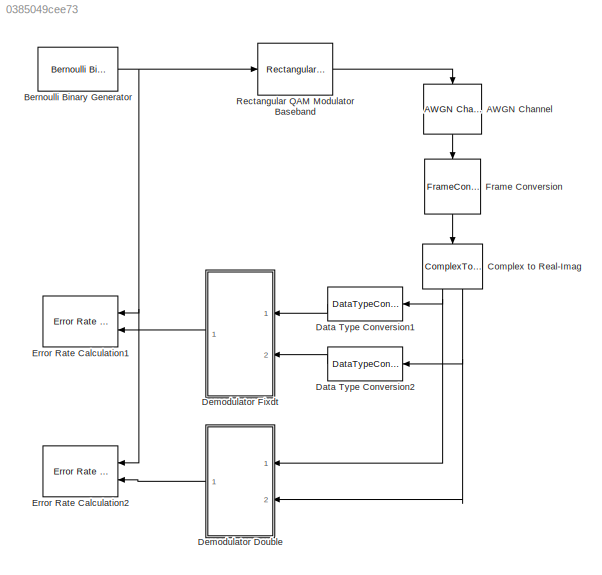
MODEL slx_0385049cee73
KIND model
CONFIG AbsTol = auto
CONFIG FixedStep = auto
CONFIG MaxStep = auto
CONFIG MinStep = auto
CONFIG RelTol = 1e-3
CONFIG SampleTimeConstraint = Unconstrained
CONFIG Solver = ode45
CONFIG SolverMode = Auto
CONFIG SolverName = ode45
CONFIG StartTime = 0.0
CONFIG StopTime = 10
BLOCK [Reference] AWGN Channel  REF=commchan3/AWGN
Channel
  EbNodB = 10
  EsNodB = 10
  InputProcessing = Columns as channels (frame based)
  Ports = [1, 1]
  Ps = 1
  SNRdB = 7
  SourceBlock = commchan3/AWGN\nChannel
  SourceType = AWGN Channel
  Tsym = 1
  UserDataPersistent = on
  bitsPerSym = 1
  noiseMode = Signal to noise ratio  (SNR)
  seed = round(200 * sum(clock))
  variance = 1
BLOCK [Reference] Bernoulli Binary Generator  REF=commrandsrc2/Bernoulli Binary
Generator
  P = 0.5
  Ports = [0, 1]
  SourceBlock = commrandsrc2/Bernoulli Binary\nGenerator
  SourceType = Bernoulli Binary Generator
  Ts = 0.25e-6
  frameBased = on
  orient = off
  outDataType = boolean
  sampPerFrame = 4
  seed = round(100 * sum(clock))
BLOCK [ComplexToRealImag] Complex to Real-Imag
  Ports = [1, 2]
BLOCK [DataTypeConversion] Data Type Conversion1
  RndMeth = Floor
  SaturateOnIntegerOverflow = off
BLOCK [DataTypeConversion] Data Type Conversion2
  RndMeth = Floor
  SaturateOnIntegerOverflow = off
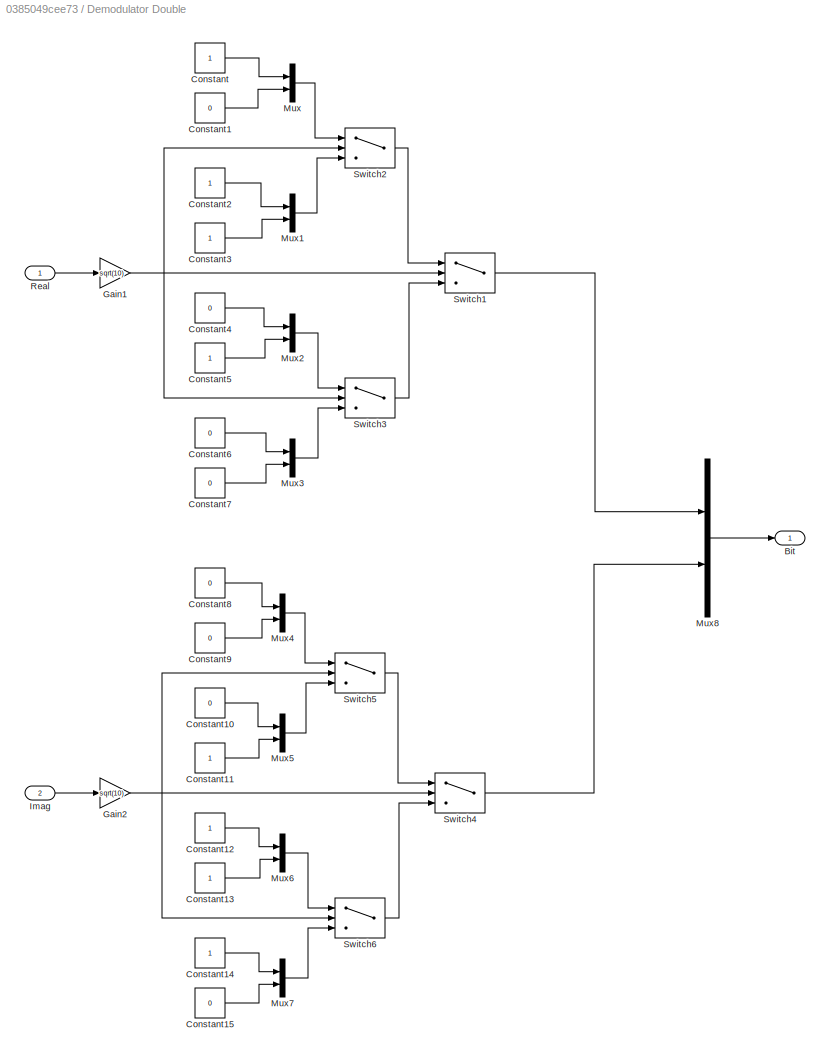
BLOCK [SubSystem] Demodulator Double
  Ports = [2, 1]
  RequestExecContextInheritance = off
BLOCK [Outport] Demodulator Double/Bit
  IconDisplay = Port number
BLOCK [Constant] Demodulator Double/Constant
  OutDataTypeStr = boolean
BLOCK [Constant] Demodulator Double/Constant1
  OutDataTypeStr = boolean
  Value = 0
BLOCK [Constant] Demodulator Double/Constant10
  OutDataTypeStr = boolean
  Value = 0
BLOCK [Constant] Demodulator Double/Constant11
  OutDataTypeStr = boolean
BLOCK [Constant] Demodulator Double/Constant12
  OutDataTypeStr = boolean
BLOCK [Constant] Demodulator Double/Constant13
  OutDataTypeStr = boolean
BLOCK [Constant] Demodulator Double/Constant14
  OutDataTypeStr = boolean
BLOCK [Constant] Demodulator Double/Constant15
  OutDataTypeStr = boolean
  Value = 0
BLOCK [Constant] Demodulator Double/Constant2
  OutDataTypeStr = boolean
BLOCK [Constant] Demodulator Double/Constant3
  OutDataTypeStr = boolean
BLOCK [Constant] Demodulator Double/Constant4
  OutDataTypeStr = boolean
  Value = 0
BLOCK [Constant] Demodulator Double/Constant5
  OutDataTypeStr = boolean
BLOCK [Constant] Demodulator Double/Constant6
  OutDataTypeStr = boolean
  Value = 0
BLOCK [Constant] Demodulator Double/Constant7
  OutDataTypeStr = boolean
  Value = 0
BLOCK [Constant] Demodulator Double/Constant8
  OutDataTypeStr = boolean
  Value = 0
BLOCK [Constant] Demodulator Double/Constant9
  OutDataTypeStr = boolean
  Value = 0
BLOCK [Gain] Demodulator Double/Gain1
  Gain = sqrt(10)
  OutDataTypeStr = Inherit: Inherit via internal rule
  ParamDataTypeStr = Inherit: Inherit via internal rule
  SaturateOnIntegerOverflow = off
BLOCK [Gain] Demodulator Double/Gain2
  Gain = sqrt(10)
  OutDataTypeStr = Inherit: Inherit via internal rule
  ParamDataTypeStr = Inherit: Inherit via internal rule
  SaturateOnIntegerOverflow = off
BLOCK [Inport] Demodulator Double/Imag
  IconDisplay = Port number
  Port = 2
BLOCK [Mux] Demodulator Double/Mux
  DisplayOption = bar
  Inputs = 2
  Ports = [2, 1]
BLOCK [Mux] Demodulator Double/Mux1
  DisplayOption = bar
  Inputs = 2
  Ports = [2, 1]
BLOCK [Mux] Demodulator Double/Mux2
  DisplayOption = bar
  Inputs = 2
  Ports = [2, 1]
BLOCK [Mux] Demodulator Double/Mux3
  DisplayOption = bar
  Inputs = 2
  Ports = [2, 1]
BLOCK [Mux] Demodulator Double/Mux4
  DisplayOption = bar
  Inputs = 2
  Ports = [2, 1]
BLOCK [Mux] Demodulator Double/Mux5
  DisplayOption = bar
  Inputs = 2
  Ports = [2, 1]
BLOCK [Mux] Demodulator Double/Mux6
  DisplayOption = bar
  Inputs = 2
  Ports = [2, 1]
BLOCK [Mux] Demodulator Double/Mux7
  DisplayOption = bar
  Inputs = 2
  Ports = [2, 1]
BLOCK [Mux] Demodulator Double/Mux8
  DisplayOption = bar
  Inputs = 2
  Ports = [2, 1]
BLOCK [Inport] Demodulator Double/Real
  IconDisplay = Port number
BLOCK [Switch] Demodulator Double/Switch1
  Criteria = u2 > Threshold
  InputSameDT = off
  SaturateOnIntegerOverflow = off
BLOCK [Switch] Demodulator Double/Switch2
  Criteria = u2 > Threshold
  InputSameDT = off
  SaturateOnIntegerOverflow = off
  Threshold = 2
BLOCK [Switch] Demodulator Double/Switch3
  Criteria = u2 > Threshold
  InputSameDT = off
  SaturateOnIntegerOverflow = off
  Threshold = -2
BLOCK [Switch] Demodulator Double/Switch4
  Criteria = u2 > Threshold
  InputSameDT = off
  SaturateOnIntegerOverflow = off
BLOCK [Switch] Demodulator Double/Switch5
  Criteria = u2 > Threshold
  InputSameDT = off
  SaturateOnIntegerOverflow = off
  Threshold = 2
BLOCK [Switch] Demodulator Double/Switch6
  Criteria = u2 > Threshold
  InputSameDT = off
  SaturateOnIntegerOverflow = off
  Threshold = -2
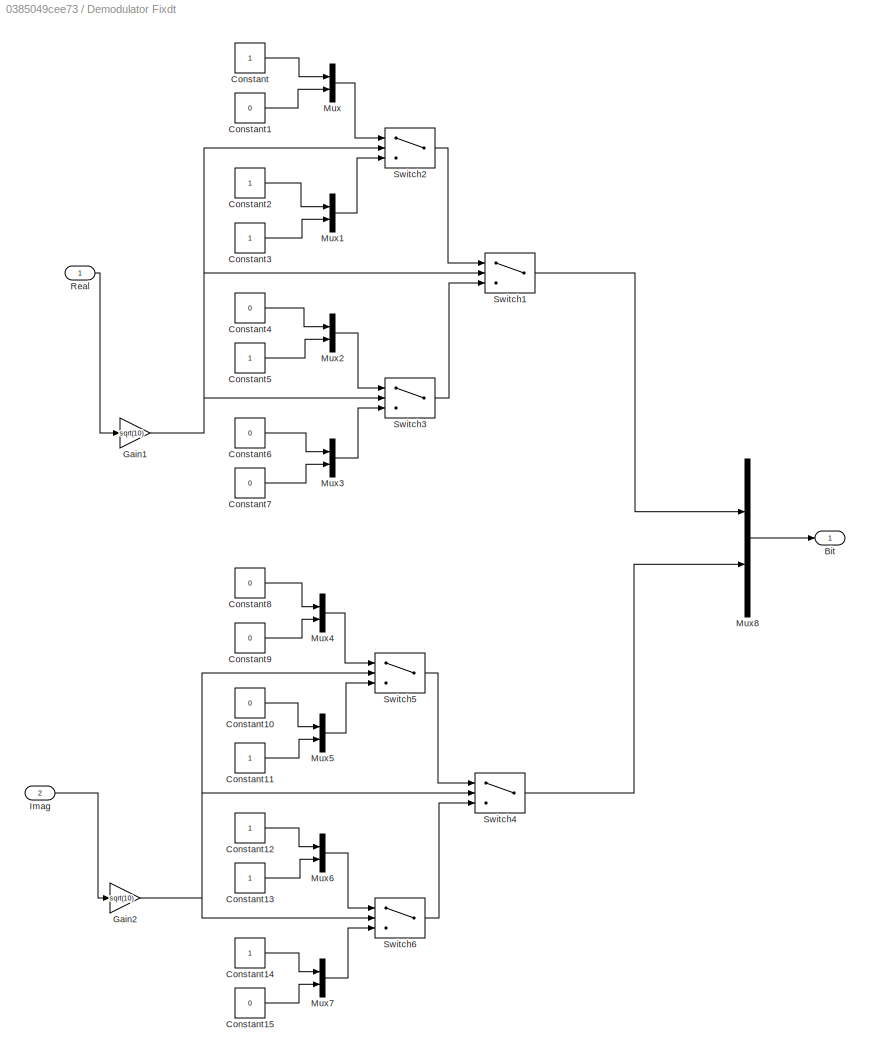
BLOCK [SubSystem] Demodulator Fixdt
  MinMaxOverflowLogging = MinMaxAndOverflow
  Ports = [2, 1]
  RequestExecContextInheritance = off
BLOCK [Outport] Demodulator Fixdt/Bit
  IconDisplay = Port number
BLOCK [Constant] Demodulator Fixdt/Constant
  OutDataTypeStr = boolean
BLOCK [Constant] Demodulator Fixdt/Constant1
  OutDataTypeStr = boolean
  Value = 0
BLOCK [Constant] Demodulator Fixdt/Constant10
  OutDataTypeStr = boolean
  Value = 0
BLOCK [Constant] Demodulator Fixdt/Constant11
  OutDataTypeStr = boolean
BLOCK [Constant] Demodulator Fixdt/Constant12
  OutDataTypeStr = boolean
BLOCK [Constant] Demodulator Fixdt/Constant13
  OutDataTypeStr = boolean
BLOCK [Constant] Demodulator Fixdt/Constant14
  OutDataTypeStr = boolean
BLOCK [Constant] Demodulator Fixdt/Constant15
  OutDataTypeStr = boolean
  Value = 0
BLOCK [Constant] Demodulator Fixdt/Constant2
  OutDataTypeStr = boolean
BLOCK [Constant] Demodulator Fixdt/Constant3
  OutDataTypeStr = boolean
BLOCK [Constant] Demodulator Fixdt/Constant4
  OutDataTypeStr = boolean
  Value = 0
BLOCK [Constant] Demodulator Fixdt/Constant5
  OutDataTypeStr = boolean
BLOCK [Constant] Demodulator Fixdt/Constant6
  OutDataTypeStr = boolean
  Value = 0
BLOCK [Constant] Demodulator Fixdt/Constant7
  OutDataTypeStr = boolean
  Value = 0
BLOCK [Constant] Demodulator Fixdt/Constant8
  OutDataTypeStr = boolean
  Value = 0
BLOCK [Constant] Demodulator Fixdt/Constant9
  OutDataTypeStr = boolean
  Value = 0
BLOCK [Gain] Demodulator Fixdt/Gain1
  Gain = sqrt(10)
  OutDataTypeStr = fixdt(1,16,12)
  ParamDataTypeStr = Inherit: Inherit via internal rule
  SaturateOnIntegerOverflow = off
BLOCK [Gain] Demodulator Fixdt/Gain2
  Gain = sqrt(10)
  OutDataTypeStr = fixdt(1,16,12)
  ParamDataTypeStr = Inherit: Inherit via internal rule
  SaturateOnIntegerOverflow = off
BLOCK [Inport] Demodulator Fixdt/Imag
  IconDisplay = Port number
  LockScale = on
  OutDataTypeStr = fixdt(1,16,13)
  Port = 2
BLOCK [Mux] Demodulator Fixdt/Mux
  DisplayOption = bar
  Inputs = 2
  Ports = [2, 1]
BLOCK [Mux] Demodulator Fixdt/Mux1
  DisplayOption = bar
  Inputs = 2
  Ports = [2, 1]
BLOCK [Mux] Demodulator Fixdt/Mux2
  DisplayOption = bar
  Inputs = 2
  Ports = [2, 1]
BLOCK [Mux] Demodulator Fixdt/Mux3
  DisplayOption = bar
  Inputs = 2
  Ports = [2, 1]
BLOCK [Mux] Demodulator Fixdt/Mux4
  DisplayOption = bar
  Inputs = 2
  Ports = [2, 1]
BLOCK [Mux] Demodulator Fixdt/Mux5
  DisplayOption = bar
  Inputs = 2
  Ports = [2, 1]
BLOCK [Mux] Demodulator Fixdt/Mux6
  DisplayOption = bar
  Inputs = 2
  Ports = [2, 1]
BLOCK [Mux] Demodulator Fixdt/Mux7
  DisplayOption = bar
  Inputs = 2
  Ports = [2, 1]
BLOCK [Mux] Demodulator Fixdt/Mux8
  DisplayOption = bar
  Inputs = 2
  Ports = [2, 1]
BLOCK [Inport] Demodulator Fixdt/Real
  IconDisplay = Port number
  LockScale = on
  OutDataTypeStr = fixdt(1,16,13)
BLOCK [Switch] Demodulator Fixdt/Switch1
  Criteria = u2 > Threshold
  InputSameDT = off
  SaturateOnIntegerOverflow = off
BLOCK [Switch] Demodulator Fixdt/Switch2
  Criteria = u2 > Threshold
  InputSameDT = off
  SaturateOnIntegerOverflow = off
  Threshold = 2
BLOCK [Switch] Demodulator Fixdt/Switch3
  Criteria = u2 > Threshold
  InputSameDT = off
  SaturateOnIntegerOverflow = off
  Threshold = -2
BLOCK [Switch] Demodulator Fixdt/Switch4
  Criteria = u2 > Threshold
  InputSameDT = off
  SaturateOnIntegerOverflow = off
BLOCK [Switch] Demodulator Fixdt/Switch5
  Criteria = u2 > Threshold
  InputSameDT = off
  SaturateOnIntegerOverflow = off
  Threshold = 2
BLOCK [Switch] Demodulator Fixdt/Switch6
  Criteria = u2 > Threshold
  InputSameDT = off
  SaturateOnIntegerOverflow = off
  Threshold = -2
BLOCK [Reference] Error Rate Calculation1  REF=commsink2/Error Rate
Calculation
  N = 0
  PMode = Workspace
  Ports = [2]
  RsMode2 = off
  SourceBlock = commsink2/Error Rate\nCalculation
  SourceType = Error Rate Calculation
  WsName = ErrorVecFixdt
  cp_mode = Entire frame
  maxBits = 1e6
  numErr = 100
  st_delay = 0
  stop = off
  subframe = []
BLOCK [Reference] Error Rate Calculation2  REF=commsink2/Error Rate
Calculation
  N = 0
  PMode = Workspace
  Ports = [2]
  RsMode2 = off
  SourceBlock = commsink2/Error Rate\nCalculation
  SourceType = Error Rate Calculation
  WsName = ErrorVecDouble
  cp_mode = Entire frame
  maxBits = 1e6
  numErr = 100
  st_delay = 0
  stop = off
  subframe = []
BLOCK [FrameConversion] Frame Conversion
  OutFrame = Sample-based
  Ports = [1, 1]
BLOCK [Reference] Rectangular QAM Modulator Baseband  REF=commdigbbndam3/Rectangular QAM
Modulator
Baseband
  AvgPow = 1
  Enc = Gray
  InType = Bit
  M = 16
  Mapping = [0:15]
  MinDist = 2
  PeakPow = 1
  Ph = 0
  Ports = [1, 1]
  PowType = Average Power
  SourceBlock = commdigbbndam3/Rectangular QAM\nModulator\nBaseband
  SourceType = Rectangular QAM Modulator Baseband
  outDtype = double
  outFracLen = 15
  outFracLenMode = Best precision
  outUDDataType = sfix(16)
  outWordLen = 16
LINE AWGN Channel:1 -> Frame Conversion:1
NET Bernoulli Binary Generator:1 -> Error Rate Calculation1:1, Error Rate Calculation2:1, Rectangular QAM Modulator Baseband:1
NET Complex to Real-Imag:1 -> Data Type Conversion1:1, Demodulator Double:1
NET Complex to Real-Imag:2 -> Data Type Conversion2:1, Demodulator Double:2
LINE Data Type Conversion1:1 -> Demodulator Fixdt:1
LINE Data Type Conversion2:1 -> Demodulator Fixdt:2
LINE Demodulator Double/Constant10:1 -> Demodulator Double/Mux5:1
LINE Demodulator Double/Constant11:1 -> Demodulator Double/Mux5:2
LINE Demodulator Double/Constant12:1 -> Demodulator Double/Mux6:1
LINE Demodulator Double/Constant13:1 -> Demodulator Double/Mux6:2
LINE Demodulator Double/Constant14:1 -> Demodulator Double/Mux7:1
LINE Demodulator Double/Constant15:1 -> Demodulator Double/Mux7:2
LINE Demodulator Double/Constant1:1 -> Demodulator Double/Mux:2
LINE Demodulator Double/Constant2:1 -> Demodulator Double/Mux1:1
LINE Demodulator Double/Constant3:1 -> Demodulator Double/Mux1:2
LINE Demodulator Double/Constant4:1 -> Demodulator Double/Mux2:1
LINE Demodulator Double/Constant5:1 -> Demodulator Double/Mux2:2
LINE Demodulator Double/Constant6:1 -> Demodulator Double/Mux3:1
LINE Demodulator Double/Constant7:1 -> Demodulator Double/Mux3:2
LINE Demodulator Double/Constant8:1 -> Demodulator Double/Mux4:1
LINE Demodulator Double/Constant9:1 -> Demodulator Double/Mux4:2
LINE Demodulator Double/Constant:1 -> Demodulator Double/Mux:1
NET Demodulator Double/Gain1:1 -> Demodulator Double/Switch1:2, Demodulator Double/Switch2:2, Demodulator Double/Switch3:2
NET Demodulator Double/Gain2:1 -> Demodulator Double/Switch4:2, Demodulator Double/Switch5:2, Demodulator Double/Switch6:2
LINE Demodulator Double/Imag:1 -> Demodulator Double/Gain2:1
LINE Demodulator Double/Mux1:1 -> Demodulator Double/Switch2:3
LINE Demodulator Double/Mux2:1 -> Demodulator Double/Switch3:1
LINE Demodulator Double/Mux3:1 -> Demodulator Double/Switch3:3
LINE Demodulator Double/Mux4:1 -> Demodulator Double/Switch5:1
LINE Demodulator Double/Mux5:1 -> Demodulator Double/Switch5:3
LINE Demodulator Double/Mux6:1 -> Demodulator Double/Switch6:1
LINE Demodulator Double/Mux7:1 -> Demodulator Double/Switch6:3
LINE Demodulator Double/Mux8:1 -> Demodulator Double/Bit:1
LINE Demodulator Double/Mux:1 -> Demodulator Double/Switch2:1
LINE Demodulator Double/Real:1 -> Demodulator Double/Gain1:1
LINE Demodulator Double/Switch1:1 -> Demodulator Double/Mux8:1
LINE Demodulator Double/Switch2:1 -> Demodulator Double/Switch1:1
LINE Demodulator Double/Switch3:1 -> Demodulator Double/Switch1:3
LINE Demodulator Double/Switch4:1 -> Demodulator Double/Mux8:2
LINE Demodulator Double/Switch5:1 -> Demodulator Double/Switch4:1
LINE Demodulator Double/Switch6:1 -> Demodulator Double/Switch4:3
LINE Demodulator Double:1 -> Error Rate Calculation2:2
LINE Demodulator Fixdt/Constant10:1 -> Demodulator Fixdt/Mux5:1
LINE Demodulator Fixdt/Constant11:1 -> Demodulator Fixdt/Mux5:2
LINE Demodulator Fixdt/Constant12:1 -> Demodulator Fixdt/Mux6:1
LINE Demodulator Fixdt/Constant13:1 -> Demodulator Fixdt/Mux6:2
LINE Demodulator Fixdt/Constant14:1 -> Demodulator Fixdt/Mux7:1
LINE Demodulator Fixdt/Constant15:1 -> Demodulator Fixdt/Mux7:2
LINE Demodulator Fixdt/Constant1:1 -> Demodulator Fixdt/Mux:2
LINE Demodulator Fixdt/Constant2:1 -> Demodulator Fixdt/Mux1:1
LINE Demodulator Fixdt/Constant3:1 -> Demodulator Fixdt/Mux1:2
LINE Demodulator Fixdt/Constant4:1 -> Demodulator Fixdt/Mux2:1
LINE Demodulator Fixdt/Constant5:1 -> Demodulator Fixdt/Mux2:2
LINE Demodulator Fixdt/Constant6:1 -> Demodulator Fixdt/Mux3:1
LINE Demodulator Fixdt/Constant7:1 -> Demodulator Fixdt/Mux3:2
LINE Demodulator Fixdt/Constant8:1 -> Demodulator Fixdt/Mux4:1
LINE Demodulator Fixdt/Constant9:1 -> Demodulator Fixdt/Mux4:2
LINE Demodulator Fixdt/Constant:1 -> Demodulator Fixdt/Mux:1
NET Demodulator Fixdt/Gain1:1 -> Demodulator Fixdt/Switch1:2, Demodulator Fixdt/Switch2:2, Demodulator Fixdt/Switch3:2
NET Demodulator Fixdt/Gain2:1 -> Demodulator Fixdt/Switch4:2, Demodulator Fixdt/Switch5:2, Demodulator Fixdt/Switch6:2
LINE Demodulator Fixdt/Imag:1 -> Demodulator Fixdt/Gain2:1
LINE Demodulator Fixdt/Mux1:1 -> Demodulator Fixdt/Switch2:3
LINE Demodulator Fixdt/Mux2:1 -> Demodulator Fixdt/Switch3:1
LINE Demodulator Fixdt/Mux3:1 -> Demodulator Fixdt/Switch3:3
LINE Demodulator Fixdt/Mux4:1 -> Demodulator Fixdt/Switch5:1
LINE Demodulator Fixdt/Mux5:1 -> Demodulator Fixdt/Switch5:3
LINE Demodulator Fixdt/Mux6:1 -> Demodulator Fixdt/Switch6:1
LINE Demodulator Fixdt/Mux7:1 -> Demodulator Fixdt/Switch6:3
LINE Demodulator Fixdt/Mux8:1 -> Demodulator Fixdt/Bit:1
LINE Demodulator Fixdt/Mux:1 -> Demodulator Fixdt/Switch2:1
LINE Demodulator Fixdt/Real:1 -> Demodulator Fixdt/Gain1:1
LINE Demodulator Fixdt/Switch1:1 -> Demodulator Fixdt/Mux8:1
LINE Demodulator Fixdt/Switch2:1 -> Demodulator Fixdt/Switch1:1
LINE Demodulator Fixdt/Switch3:1 -> Demodulator Fixdt/Switch1:3
LINE Demodulator Fixdt/Switch4:1 -> Demodulator Fixdt/Mux8:2
LINE Demodulator Fixdt/Switch5:1 -> Demodulator Fixdt/Switch4:1
LINE Demodulator Fixdt/Switch6:1 -> Demodulator Fixdt/Switch4:3
LINE Demodulator Fixdt:1 -> Error Rate Calculation1:2
LINE Frame Conversion:1 -> Complex to Real-Imag:1
LINE Rectangular QAM Modulator Baseband:1 -> AWGN Channel:1
note: NET lines group one-source signal fan-out (src -> all destinations, sorted); 1:1 wires keep LINE
